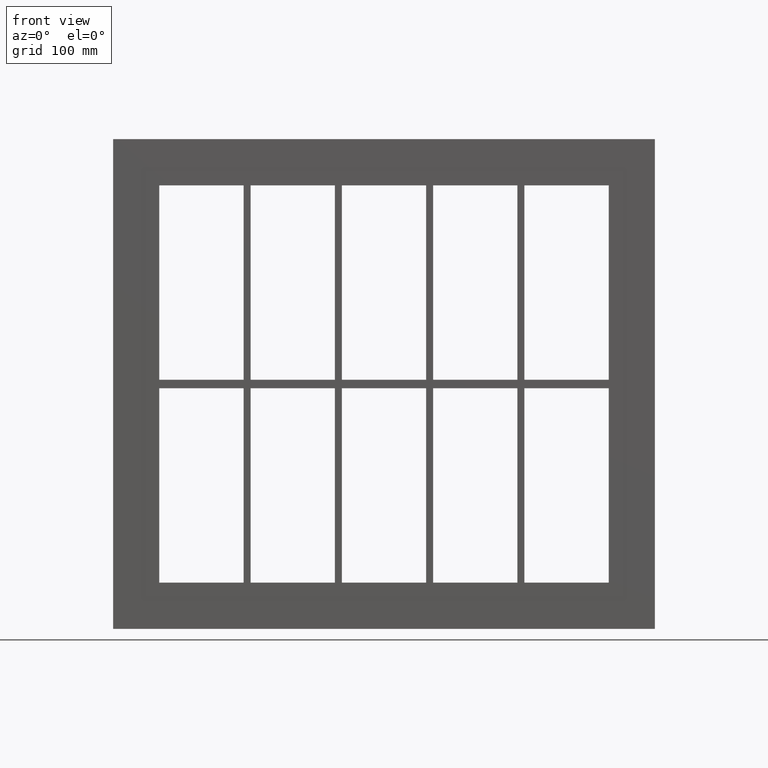
[diagram: clean part render]
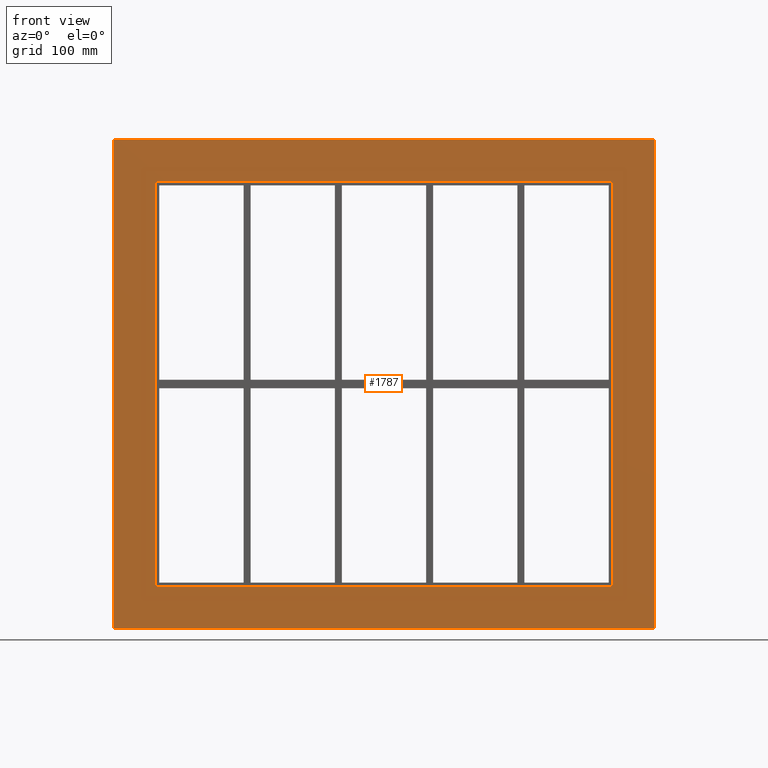
[diagram: same view with one face highlighted and labeled with its STEP entity id]
A machine part, front view. The second image highlights one B-rep face of the part: STEP entity #1787.
In plain terms, the highlighted planar face has unit normal (0, 1, 0).
Its self-contained STEP definition (entity closure, byte-faithful):
#1678=CARTESIAN_POINT('',(3.469588E-014,0.0,0.0));
#1679=DIRECTION('',(0.0,1.0,0.0));
#1680=DIRECTION('',(0.0,0.0,1.0));
#1681=AXIS2_PLACEMENT_3D('',#1678,#1679,#1680);
#1682=PLANE('',#1681);
#1683=CARTESIAN_POINT('',(-387.25000000000011,0.0,350.00000000000006));
#1684=VERTEX_POINT('',#1683);
#1685=CARTESIAN_POINT('',(387.25000000000017,0.0,350.00000000000006));
#1686=VERTEX_POINT('',#1685);
#1687=CARTESIAN_POINT('',(-387.25000000000011,0.0,350.00000000000006));
#1688=DIRECTION('',(1.0,0.0,0.0));
#1689=VECTOR('',#1688,774.50000000000023);
#1690=LINE('',#1687,#1689);
#1691=EDGE_CURVE('',#1684,#1686,#1690,.T.);
#1692=ORIENTED_EDGE('',*,*,#1691,.F.);
#1693=CARTESIAN_POINT('',(-387.25000000000011,0.0,-350.00000000000006));
#1694=VERTEX_POINT('',#1693);
#1695=CARTESIAN_POINT('',(-387.25000000000011,0.0,-350.00000000000006));
#1696=DIRECTION('',(0.0,0.0,1.0));
#1697=VECTOR('',#1696,700.00000000000011);
#1698=LINE('',#1695,#1697);
#1699=EDGE_CURVE('',#1694,#1684,#1698,.T.);
#1700=ORIENTED_EDGE('',*,*,#1699,.F.);
#1701=CARTESIAN_POINT('',(387.25000000000017,0.0,-350.00000000000006));
#1702=VERTEX_POINT('',#1701);
#1703=CARTESIAN_POINT('',(387.25000000000017,0.0,-350.00000000000006));
#1704=DIRECTION('',(-1.0,0.0,0.0));
#1705=VECTOR('',#1704,774.50000000000023);
#1706=LINE('',#1703,#1705);
#1707=EDGE_CURVE('',#1702,#1694,#1706,.T.);
#1708=ORIENTED_EDGE('',*,*,#1707,.F.);
#1709=CARTESIAN_POINT('',(387.25000000000017,0.0,350.00000000000006));
#1710=DIRECTION('',(0.0,0.0,-1.0));
#1711=VECTOR('',#1710,700.00000000000011);
#1712=LINE('',#1709,#1711);
#1713=EDGE_CURVE('',#1686,#1702,#1712,.T.);
#1714=ORIENTED_EDGE('',*,*,#1713,.F.);
#1715=EDGE_LOOP('',(#1692,#1700,#1708,#1714));
#1716=FACE_OUTER_BOUND('',#1715,.T.);
#1717=CARTESIAN_POINT('',(-327.25,0.0,-284.0));
#1718=VERTEX_POINT('',#1717);
#1719=CARTESIAN_POINT('',(-321.25,0.0,-290.0));
#1720=VERTEX_POINT('',#1719);
#1721=CARTESIAN_POINT('',(-321.25,0.0,-284.0));
#1722=DIRECTION('',(0.0,-1.0,0.0));
#1723=DIRECTION('',(-0.707106781186543,0.0,-0.707106781186552));
#1724=AXIS2_PLACEMENT_3D('',#1721,#1722,#1723);
#1725=CIRCLE('',#1724,6.000000000000001);
#1726=EDGE_CURVE('',#1718,#1720,#1725,.T.);
#1727=ORIENTED_EDGE('',*,*,#1726,.F.);
#1728=CARTESIAN_POINT('',(-327.25,0.0,284.00000000000006));
#1729=VERTEX_POINT('',#1728);
#1730=CARTESIAN_POINT('',(-327.25,0.0,284.00000000000006));
#1731=DIRECTION('',(0.0,0.0,-1.0));
#1732=VECTOR('',#1731,568.0);
#1733=LINE('',#1730,#1732);
#1734=EDGE_CURVE('',#1729,#1718,#1733,.T.);
#1735=ORIENTED_EDGE('',*,*,#1734,.F.);
#1736=CARTESIAN_POINT('',(-321.25,0.0,290.00000000000006));
#1737=VERTEX_POINT('',#1736);
#1738=CARTESIAN_POINT('',(-321.25,0.0,284.00000000000006));
#1739=DIRECTION('',(0.0,-1.0,0.0));
#1740=DIRECTION('',(-0.707106781186543,0.0,0.707106781186552));
#1741=AXIS2_PLACEMENT_3D('',#1738,#1739,#1740);
#1742=CIRCLE('',#1741,6.000000000000001);
#1743=EDGE_CURVE('',#1737,#1729,#1742,.T.);
#1744=ORIENTED_EDGE('',*,*,#1743,.F.);
#1745=CARTESIAN_POINT('',(321.25,0.0,290.00000000000006));
#1746=VERTEX_POINT('',#1745);
#1747=CARTESIAN_POINT('',(321.25,0.0,290.00000000000006));
#1748=DIRECTION('',(-1.0,0.0,0.0));
#1749=VECTOR('',#1748,642.5);
#1750=LINE('',#1747,#1749);
#1751=EDGE_CURVE('',#1746,#1737,#1750,.T.);
#1752=ORIENTED_EDGE('',*,*,#1751,.F.);
#1753=CARTESIAN_POINT('',(327.25,0.0,284.00000000000006));
#1754=VERTEX_POINT('',#1753);
#1755=CARTESIAN_POINT('',(321.25,0.0,284.00000000000006));
#1756=DIRECTION('',(0.0,-1.0,0.0));
#1757=DIRECTION('',(0.707106781186543,0.0,0.707106781186552));
#1758=AXIS2_PLACEMENT_3D('',#1755,#1756,#1757);
#1759=CIRCLE('',#1758,6.000000000000001);
#1760=EDGE_CURVE('',#1754,#1746,#1759,.T.);
#1761=ORIENTED_EDGE('',*,*,#1760,.F.);
#1762=CARTESIAN_POINT('',(327.25,0.0,-284.0));
#1763=VERTEX_POINT('',#1762);
#1764=CARTESIAN_POINT('',(327.25,0.0,-284.0));
#1765=DIRECTION('',(0.0,0.0,1.0));
#1766=VECTOR('',#1765,568.0);
#1767=LINE('',#1764,#1766);
#1768=EDGE_CURVE('',#1763,#1754,#1767,.T.);
#1769=ORIENTED_EDGE('',*,*,#1768,.F.);
#1770=CARTESIAN_POINT('',(321.25,0.0,-290.0));
#1771=VERTEX_POINT('',#1770);
#1772=CARTESIAN_POINT('',(321.25,0.0,-284.0));
#1773=DIRECTION('',(0.0,-1.0,0.0));
#1774=DIRECTION('',(0.707106781186543,0.0,-0.707106781186552));
#1775=AXIS2_PLACEMENT_3D('',#1772,#1773,#1774);
#1776=CIRCLE('',#1775,6.000000000000001);
#1777=EDGE_CURVE('',#1771,#1763,#1776,.T.);
#1778=ORIENTED_EDGE('',*,*,#1777,.F.);
#1779=CARTESIAN_POINT('',(-321.25,0.0,-290.0));
#1780=DIRECTION('',(1.0,0.0,0.0));
#1781=VECTOR('',#1780,642.5);
#1782=LINE('',#1779,#1781);
#1783=EDGE_CURVE('',#1720,#1771,#1782,.T.);
#1784=ORIENTED_EDGE('',*,*,#1783,.F.);
#1785=EDGE_LOOP('',(#1727,#1735,#1744,#1752,#1761,#1769,#1778,#1784));
#1786=FACE_BOUND('',#1785,.T.);
#1787=ADVANCED_FACE('',(#1716,#1786),#1682,.F.);